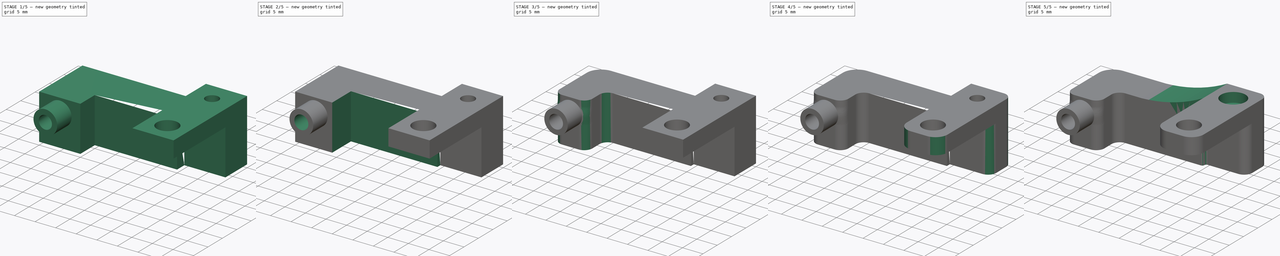
[diagram: build sequence overview — one tinted view per stage of 5, left to right]
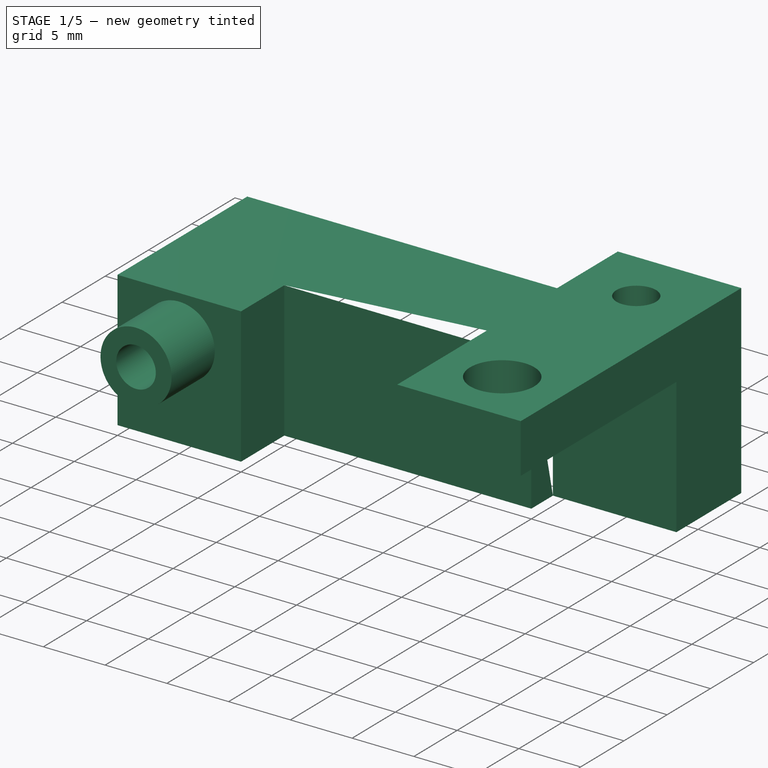
[diagram: stage 1 of 5 — iso view after this stage's code; geometry added in this stage tinted green]
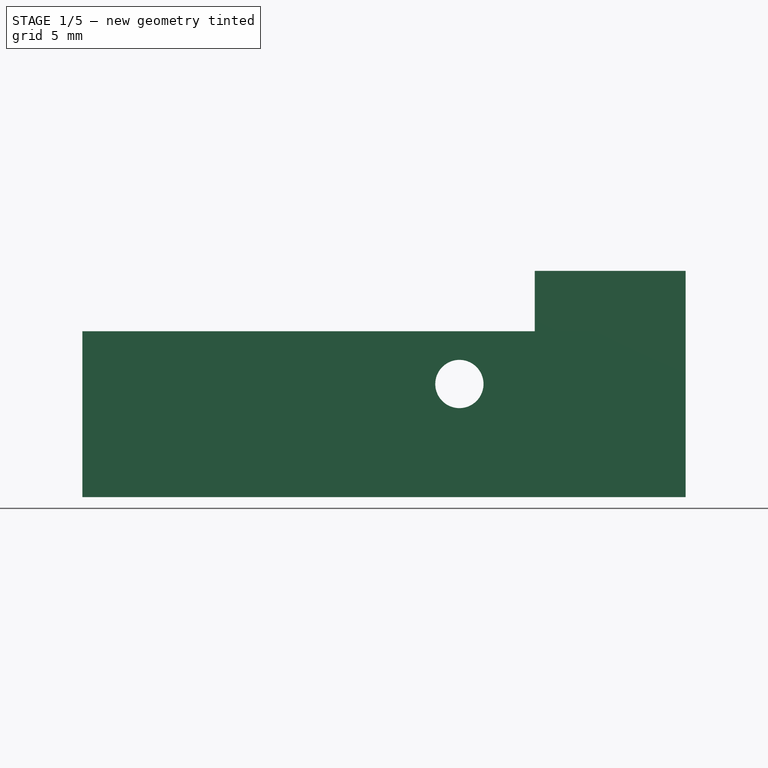
[diagram: stage 1 of 5 — front view after this stage's code; geometry added in this stage tinted green]
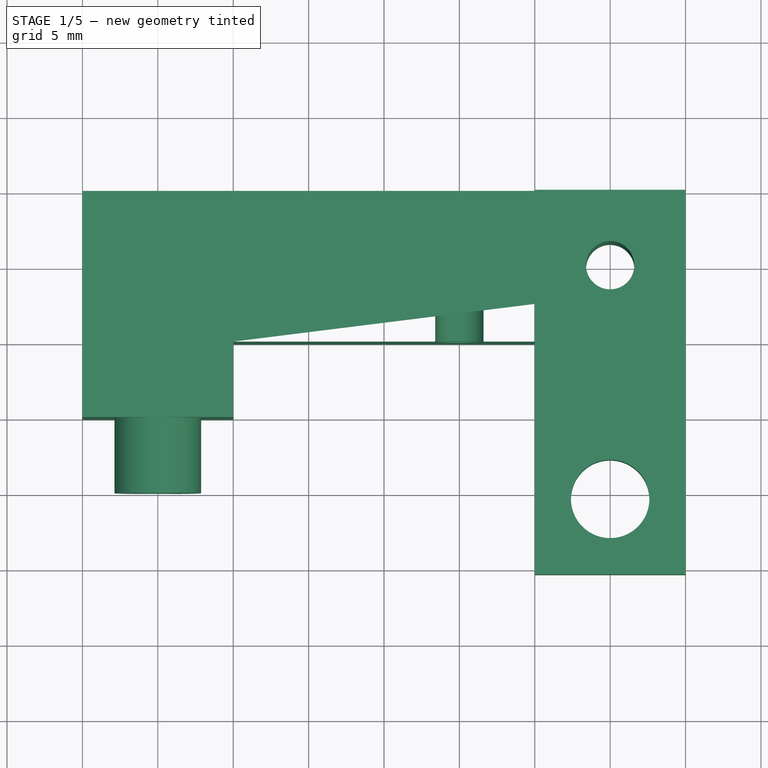
[diagram: stage 1 of 5 — top view after this stage's code; geometry added in this stage tinted green]
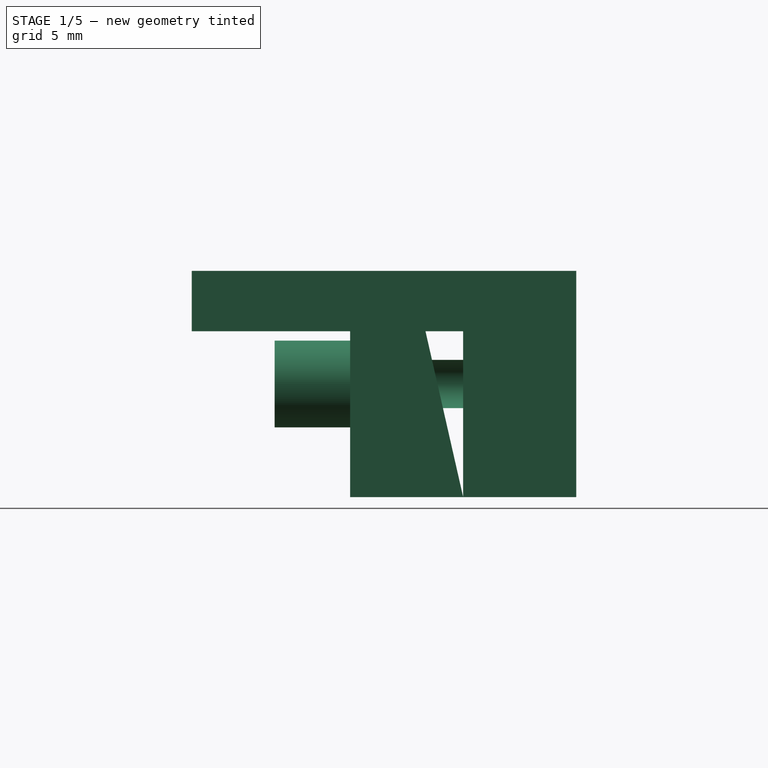
[diagram: stage 1 of 5 — right view after this stage's code; geometry added in this stage tinted green]
FCSTD DOCUMENT  (FreeCAD 1.0R39109 (Git))
Label: bearing_holder
License: All rights reserved
LicenseURL: https://en.wikipedia.org/wiki/All_rights_reserved
objects: Sketcher::SketchObject×7, PartDesign::Fillet×7, PartDesign::Pad×4, PartDesign::Pocket×4, PartDesign::Hole×3, PartDesign::Body×1
note: 69 computed .brp shape members not serialized (recipe doc carries the construction recipe); baked Part::Feature solids carry a one-line shape summary decoded from their .brp

FEATURE [Sketcher::SketchObject] Sketch
  ArcFitTolerance = 1e-06
  AttachmentSupport = -> [XY_Plane]
  FullyConstrained = true
  MakeInternals = false
  MapMode = 5
  sketch-geometry (34):
    g0: LineSegment [constr] StartX=0 StartY=0 StartZ=0 EndX=40 EndY=0 EndZ=0
    g1: LineSegment [constr] StartX=40 StartY=0 StartZ=0 EndX=40 EndY=10 EndZ=0
    g2: LineSegment StartX=40 StartY=10 StartZ=0 EndX=0 EndY=10 EndZ=0
    g3: LineSegment StartX=0 StartY=10 StartZ=0 EndX=0 EndY=0 EndZ=0
    g4: LineSegment [constr] StartX=40 StartY=0 StartZ=0 EndX=30 EndY=0 EndZ=0
    g5: LineSegment [constr] StartX=30 StartY=0 StartZ=0 EndX=30 EndY=-15.5 EndZ=0
    g6: LineSegment [constr] StartX=30 StartY=-15.5 StartZ=0 EndX=40 EndY=-15.5 EndZ=0
    g7: LineSegment [constr] StartX=40 StartY=-15.5 StartZ=0 EndX=40 EndY=0 EndZ=0
    g8: LineSegment StartX=40 StartY=10 StartZ=0 EndX=30 EndY=10 EndZ=0
    g9: LineSegment [constr] StartX=30 StartY=10 StartZ=0 EndX=40 EndY=0 EndZ=0
    g10: Circle CenterX=35 CenterY=5 CenterZ=0 NormalX=0 NormalY=0 NormalZ=1 AngleXU=0 Radius=1.6
    g11: LineSegment [constr] StartX=35 StartY=5 StartZ=0 EndX=35 EndY=-10.5 EndZ=0
    g12: Circle [constr] CenterX=35 CenterY=-10.5 CenterZ=0 NormalX=0 NormalY=0 NormalZ=1 AngleXU=0 Radius=2.6
    g13: LineSegment [constr] StartX=0 StartY=10 StartZ=0 EndX=0 EndY=-5 EndZ=0
    g14: LineSegment [constr] StartX=0 StartY=-5 StartZ=0 EndX=10 EndY=-5 EndZ=0
    g15: LineSegment [constr] StartX=10 StartY=-5 StartZ=0 EndX=10 EndY=10 EndZ=0
    g16: LineSegment [constr] StartX=10 StartY=10 StartZ=0 EndX=0 EndY=10 EndZ=0
    g17: LineSegment StartX=0 StartY=0 StartZ=0 EndX=0 EndY=-5 EndZ=0
    g18: LineSegment StartX=10 StartY=-5 StartZ=0 EndX=0 EndY=-5 EndZ=0
    g19: LineSegment StartX=30 StartY=0 StartZ=0 EndX=10 EndY=0 EndZ=0
    g20: LineSegment StartX=10 StartY=0 StartZ=0 EndX=10 EndY=-5 EndZ=0
    g21: LineSegment [constr] StartX=35 StartY=5 StartZ=0 EndX=35 EndY=2.5 EndZ=0
    g22: LineSegment StartX=35 StartY=2.5 StartZ=0 EndX=30 EndY=2.5 EndZ=0
    g23: LineSegment StartX=30 StartY=2.5 StartZ=0 EndX=30 EndY=0 EndZ=0
    g24: LineSegment StartX=35 StartY=2.5 StartZ=0 EndX=40 EndY=2.5 EndZ=0
    g25: LineSegment StartX=40 StartY=2.5 StartZ=0 EndX=40 EndY=10 EndZ=0
    g26: LineSegment StartX=0 StartY=10 StartZ=0 EndX=40 EndY=10 EndZ=0
    g27: LineSegment StartX=40 StartY=2.5 StartZ=0 EndX=40 EndY=10 EndZ=0
    g28: LineSegment StartX=40 StartY=2.5 StartZ=0 EndX=30 EndY=2.5 EndZ=0
    g29: LineSegment StartX=30 StartY=2.5 StartZ=0 EndX=30 EndY=0 EndZ=0
    g30: LineSegment StartX=30 StartY=0 StartZ=0 EndX=10 EndY=0 EndZ=0
    g31: LineSegment StartX=10 StartY=0 StartZ=0 EndX=10 EndY=-5 EndZ=0
    g32: LineSegment StartX=10 StartY=-5 StartZ=0 EndX=0 EndY=-5 EndZ=0
    g33: LineSegment StartX=0 StartY=-5 StartZ=0 EndX=0 EndY=10 EndZ=0
  constraints (83):
    c: Coincident(g0,g1)
    c: Coincident(g1,g2)
    c: Coincident(g2,g3)
    c: Coincident(g3,g0)
    c: Horizontal(g0)
    c: Horizontal(g2)
    c: Vertical(g1)
    c: Vertical(g3)
    c: Distance(g1,g3) = 40
    c: Distance(g0,g2) = 10
    c: Coincident(g0,g-1)
    c: Coincident(g4,g5)
    c: Coincident(g5,g6)
    c: Coincident(g6,g7)
    c: Coincident(g7,g4)
    c: Horizontal(g4)
    c: Horizontal(g6)
    c: Vertical(g5)
    c: Vertical(g7)
    c: Distance(g5,g7) = 10
    c: Distance(g4,g6) = 15.5
    c: Coincident(g4,g0)
    c: Distance(g8) = 10
    c: Coincident(g8,g1)
    c: PointOnObject(g8,g2)
    c: Coincident(g9,g8)
    c: Coincident(g9,g0)
    c: Diameter(g10) = 3.2
    c: Symmetric(g9,g9,g10)
    c: Distance(g11) = 15.5
    c: Coincident(g11,g10)
    c: Vertical(g11)
    c: Diameter(g12) = 5.2
    c: Coincident(g12,g11)
    c: Coincident(g13,g14)
    c: Coincident(g14,g15)
    c: Coincident(g15,g16)
    c: Coincident(g16,g13)
    c: Vertical(g13)
    c: Vertical(g15)
    c: Horizontal(g14)
    c: Horizontal(g16)
    c: Distance(g13,g15) = 10
    c: Distance(g14,g16) = 15
    c: Coincident(g13,g2)
    c: Coincident(g17,g0)
    c: Coincident(g17,g13)
    c: Coincident(g18,g14)
    c: Coincident(g18,g13)
    c: Distance(g19) = 20
    c: Coincident(g19,g4)
    c: PointOnObject(g19,g0)
    c: Coincident(g20,g19)
    c: Coincident(g20,g14)
    c: Distance(g21) = 2.5
    c: Coincident(g21,g10)
    c: PointOnObject(g21,g11)
    c: Distance(g22) = 5
    c: Coincident(g22,g21)
    c: Horizontal(g22)
    c: Coincident(g23,g22)
    c: Coincident(g23,g4)
    c: Coincident(g24,g21)
    c: PointOnObject(g24,g1)
    c: Horizontal(g24)
    c: Coincident(g25,g24)
    c: Coincident(g25,g1)
    c: Coincident(g26,g2)
    c: Coincident(g26,g1)
    c: Coincident(g27,g24)
    c: Coincident(g27,g1)
    c: Coincident(g28,g24)
    c: Coincident(g28,g22)
    c: Coincident(g29,g22)
    c: Coincident(g29,g4)
    c: Coincident(g30,g4)
    c: Coincident(g30,g19)
    c: Coincident(g31,g19)
    c: Coincident(g31,g14)
    c: Coincident(g32,g14)
    c: Coincident(g32,g13)
    c: Coincident(g33,g13)
    c: Coincident(g33,g2)
FEATURE [Sketcher::SketchObject] Sketch001
  ArcFitTolerance = 1e-06
  AttachmentSupport = -> [XY_Plane]
  FullyConstrained = true
  MakeInternals = false
  MapMode = 5
  sketch-geometry (17):
    g0: LineSegment [constr] StartX=0 StartY=0 StartZ=0 EndX=40 EndY=0 EndZ=0
    g1: LineSegment [constr] StartX=40 StartY=0 StartZ=0 EndX=40 EndY=10 EndZ=0
    g2: LineSegment StartX=40 StartY=10 StartZ=0 EndX=0 EndY=10 EndZ=0
    g3: LineSegment StartX=0 StartY=10 StartZ=0 EndX=0 EndY=0 EndZ=0
    g4: LineSegment StartX=0 StartY=0 StartZ=0 EndX=0 EndY=-5 EndZ=0
    g5: LineSegment StartX=0 StartY=-5 StartZ=0 EndX=10 EndY=-5 EndZ=0
    g6: LineSegment StartX=10 StartY=-5 StartZ=0 EndX=10 EndY=0 EndZ=0
    g7: LineSegment [constr] StartX=10 StartY=0 StartZ=0 EndX=0 EndY=0 EndZ=0
    g8: LineSegment [constr] StartX=40 StartY=10 StartZ=0 EndX=35 EndY=10 EndZ=0
    g9: LineSegment [constr] StartX=35 StartY=10 StartZ=0 EndX=35 EndY=5 EndZ=0
    g10: LineSegment [constr] StartX=35 StartY=5 StartZ=0 EndX=40 EndY=5 EndZ=0
    g11: LineSegment [constr] StartX=40 StartY=5 StartZ=0 EndX=40 EndY=10 EndZ=0
    g12: Circle CenterX=35 CenterY=5 CenterZ=0 NormalX=0 NormalY=0 NormalZ=1 AngleXU=0 Radius=1.6
    g13: LineSegment StartX=10 StartY=0 StartZ=0 EndX=30 EndY=0 EndZ=0
    g14: LineSegment StartX=30 StartY=0 StartZ=0 EndX=30 EndY=2.5 EndZ=0
    g15: LineSegment StartX=30 StartY=2.5 StartZ=0 EndX=40 EndY=2.5 EndZ=0
    g16: LineSegment StartX=40 StartY=10 StartZ=0 EndX=40 EndY=2.5 EndZ=0
  constraints (46):
    c: Coincident(g0,g1)
    c: Coincident(g1,g2)
    c: Coincident(g2,g3)
    c: Coincident(g3,g0)
    c: Horizontal(g0)
    c: Horizontal(g2)
    c: Vertical(g1)
    c: Vertical(g3)
    c: Distance(g1,g3) = 40
    c: Distance(g0,g2) = 10
    c: Coincident(g0,g-1)
    c: Coincident(g4,g5)
    c: Coincident(g5,g6)
    c: Coincident(g6,g7)
    c: Coincident(g7,g4)
    c: Vertical(g4)
    c: Vertical(g6)
    c: Horizontal(g5)
    c: Horizontal(g7)
    c: Distance(g4,g6) = 10
    c: Distance(g5,g7) = 5
    c: Coincident(g4,g0)
    c: Coincident(g8,g9)
    c: Coincident(g9,g10)
    c: Coincident(g10,g11)
    c: Coincident(g11,g8)
    c: Horizontal(g8)
    c: Horizontal(g10)
    c: Vertical(g9)
    c: Vertical(g11)
    c: Distance(g9,g11) = 5
    c: Distance(g8,g10) = 5
    c: Coincident(g8,g1)
    c: Diameter(g12) = 3.2
    c: Coincident(g12,g9)
    c: Distance(g13) = 20
    c: Coincident(g13,g6)
    c: PointOnObject(g13,g0)
    c: Distance(g14) = 2.5
    c: Coincident(g14,g13)
    c: Vertical(g14)
    c: Coincident(g15,g14)
    c: PointOnObject(g15,g1)
    c: Horizontal(g15)
    c: Coincident(g16,g1)
    c: Coincident(g16,g15)
FEATURE [PartDesign::Pad] Pad
  Direction = (0,0,1)
  Length = 11
  Length2 = 10
  Profile = -> Sketch001
  ReferenceAxis = -> Sketch001 [N_Axis]
  Refine = true
  Suppressed = false
  Type = 0
FEATURE [Sketcher::SketchObject] Sketch002
  ArcFitTolerance = 1e-06
  AttachmentSupport = -> [Pad]
  FullyConstrained = true
  MakeInternals = false
  MapMode = 5
  Placement = pos=(0,0,11) rot=(0,0,1;0rad)
  sketch-geometry (15):
    g0: LineSegment [constr] StartX=0 StartY=0 StartZ=0 EndX=40 EndY=0 EndZ=0
    g1: LineSegment [constr] StartX=40 StartY=0 StartZ=0 EndX=40 EndY=10 EndZ=0
    g2: LineSegment [constr] StartX=40 StartY=10 StartZ=0 EndX=0 EndY=10 EndZ=0
    g3: LineSegment [constr] StartX=0 StartY=10 StartZ=0 EndX=0 EndY=0 EndZ=0
    g4: LineSegment StartX=40 StartY=10 StartZ=0 EndX=30 EndY=10 EndZ=0
    g5: LineSegment StartX=30 StartY=10 StartZ=0 EndX=30 EndY=-15.5 EndZ=0
    g6: LineSegment StartX=30 StartY=-15.5 StartZ=0 EndX=40 EndY=-15.5 EndZ=0
    g7: LineSegment StartX=40 StartY=-15.5 StartZ=0 EndX=40 EndY=10 EndZ=0
    g8: LineSegment [constr] StartX=40 StartY=10 StartZ=0 EndX=35 EndY=10 EndZ=0
    g9: LineSegment [constr] StartX=35 StartY=10 StartZ=0 EndX=35 EndY=5 EndZ=0
    g10: LineSegment [constr] StartX=35 StartY=5 StartZ=0 EndX=40 EndY=5 EndZ=0
    g11: LineSegment [constr] StartX=40 StartY=5 StartZ=0 EndX=40 EndY=10 EndZ=0
    g12: LineSegment [constr] StartX=35 StartY=5 StartZ=0 EndX=35 EndY=-10.5 EndZ=0
    g13: Circle CenterX=35 CenterY=-10.5 CenterZ=0 NormalX=0 NormalY=0 NormalZ=1 AngleXU=0 Radius=2.6
    g14: Circle CenterX=35 CenterY=5 CenterZ=0 NormalX=0 NormalY=0 NormalZ=1 AngleXU=0 Radius=1.6
  constraints (40):
    c: Coincident(g0,g1)
    c: Coincident(g1,g2)
    c: Coincident(g2,g3)
    c: Coincident(g3,g0)
    c: Horizontal(g0)
    c: Horizontal(g2)
    c: Vertical(g1)
    c: Vertical(g3)
    c: Distance(g1,g3) = 40
    c: Distance(g0,g2) = 10
    c: Coincident(g0,g-1)
    c: Coincident(g4,g5)
    c: Coincident(g5,g6)
    c: Coincident(g6,g7)
    c: Coincident(g7,g4)
    c: Horizontal(g4)
    c: Horizontal(g6)
    c: Vertical(g5)
    c: Vertical(g7)
    c: Distance(g5,g7) = 10
    c: Distance(g4,g6) = 25.5
    c: Coincident(g4,g1)
    c: Coincident(g8,g9)
    c: Coincident(g9,g10)
    c: Coincident(g10,g11)
    c: Coincident(g11,g8)
    c: Horizontal(g8)
    c: Horizontal(g10)
    c: Vertical(g9)
    c: Vertical(g11)
    c: Distance(g9,g11) = 5
    c: Distance(g8,g10) = 5
    c: Coincident(g8,g1)
    c: Distance(g12) = 15.5
    c: Coincident(g12,g9)
    c: Vertical(g12)
    c: Diameter(g13) = 5.2
    c: Coincident(g13,g12)
    c: Diameter(g14) = 3.2
    c: Coincident(g14,g9)
FEATURE [PartDesign::Pad] Pad001
  BaseFeature = -> Pad
  Direction = (0,0,1)
  Length = 4
  Length2 = 10
  Profile = -> Sketch002
  ReferenceAxis = -> Sketch002 [N_Axis]
  Refine = true
  Suppressed = false
  Type = 0
FEATURE [Sketcher::SketchObject] Sketch003
  ArcFitTolerance = 1e-06
  AttachmentSupport = -> [Pad001]
  FullyConstrained = true
  MakeInternals = false
  MapMode = 5
  Placement = pos=(0,-5,0) rot=(1,0,0;1.5708rad)
  sketch-geometry (7):
    g0: LineSegment [constr] StartX=0 StartY=0 StartZ=0 EndX=10 EndY=0 EndZ=0
    g1: LineSegment [constr] StartX=10 StartY=0 StartZ=0 EndX=10 EndY=11 EndZ=0
    g2: LineSegment [constr] StartX=10 StartY=11 StartZ=0 EndX=0 EndY=11 EndZ=0
    g3: LineSegment [constr] StartX=0 StartY=11 StartZ=0 EndX=0 EndY=0 EndZ=0
    g4: LineSegment [constr] StartX=5 StartY=0 StartZ=0 EndX=5 EndY=7.5 EndZ=0
    g5: Circle CenterX=5 CenterY=7.5 CenterZ=0 NormalX=0 NormalY=0 NormalZ=1 AngleXU=0 Radius=2.875
    g6: Circle CenterX=5 CenterY=7.5 CenterZ=0 NormalX=0 NormalY=0 NormalZ=1 AngleXU=0 Radius=1.6
  constraints (18):
    c: Coincident(g0,g1)
    c: Coincident(g1,g2)
    c: Coincident(g2,g3)
    c: Coincident(g3,g0)
    c: Horizontal(g0)
    c: Horizontal(g2)
    c: Vertical(g1)
    c: Vertical(g3)
    c: Distance(g1,g3) = 10
    c: Distance(g0,g2) = 11
    c: Coincident(g0,g-1)
    c: Distance(g4) = 7.5
    c: Symmetric(g0,g0,g4)
    c: Vertical(g4)
    c: Diameter(g5) = 5.75
    c: Coincident(g5,g4)
    c: Diameter(g6) = 3.2
    c: Coincident(g6,g4)
FEATURE [PartDesign::Pad] Pad002
  BaseFeature = -> Pad001
  Direction = (0,-1,2e-16)
  Length = 5
  Length2 = 10
  Profile = -> Sketch003
  ReferenceAxis = -> Sketch003 [N_Axis]
  Refine = true
  Suppressed = false
  Type = 0
FEATURE [Sketcher::SketchObject] Sketch004
  ArcFitTolerance = 1e-06
  AttachmentSupport = -> [Pad002]
  FullyConstrained = true
  MakeInternals = false
  MapMode = 5
  Placement = pos=(0,10,0) rot=(0,0.707107,0.707107;3.14159rad)
  sketch-geometry (20):
    g0: LineSegment [constr] StartX=0 StartY=0 StartZ=0 EndX=0 EndY=11 EndZ=0
    g1: LineSegment [constr] StartX=0 StartY=11 StartZ=0 EndX=-40 EndY=11 EndZ=0
    g2: LineSegment [constr] StartX=-40 StartY=11 StartZ=0 EndX=-40 EndY=0 EndZ=0
    g3: LineSegment [constr] StartX=-40 StartY=0 StartZ=0 EndX=0 EndY=0 EndZ=0
    g4: LineSegment [constr] StartX=-40 StartY=0 StartZ=0 EndX=-35 EndY=0 EndZ=0
    g5: LineSegment [constr] StartX=-35 StartY=0 StartZ=0 EndX=-35 EndY=11 EndZ=0
    g6: LineSegment [constr] StartX=-35 StartY=11 StartZ=0 EndX=-40 EndY=11 EndZ=0
    g7: LineSegment [constr] StartX=-40 StartY=11 StartZ=0 EndX=-40 EndY=0 EndZ=0
    g8: LineSegment [constr] StartX=-35 StartY=0 StartZ=0 EndX=-35 EndY=7.5 EndZ=0
    g9: LineSegment [constr] StartX=-35 StartY=7.5 StartZ=0 EndX=-25 EndY=7.5 EndZ=0
    g10: Circle CenterX=-25 CenterY=7.5 CenterZ=0 NormalX=0 NormalY=0 NormalZ=1 AngleXU=0 Radius=1.6
    g11: LineSegment [constr] StartX=0 StartY=11 StartZ=0 EndX=-10 EndY=11 EndZ=0
    g12: LineSegment [constr] StartX=-10 StartY=11 StartZ=0 EndX=-10 EndY=0 EndZ=0
    g13: LineSegment [constr] StartX=-10 StartY=0 StartZ=0 EndX=0 EndY=0 EndZ=0
    g14: LineSegment [constr] StartX=0 StartY=0 StartZ=0 EndX=0 EndY=11 EndZ=0
    g15: LineSegment [constr] StartX=0 StartY=0 StartZ=0 EndX=0 EndY=7.5 EndZ=0
    g16: LineSegment [constr] StartX=0 StartY=7.5 StartZ=0 EndX=-5 EndY=7.5 EndZ=0
    g17: LineSegment [constr] StartX=-5 StartY=7.5 StartZ=0 EndX=-5 EndY=0 EndZ=0
    g18: LineSegment [constr] StartX=-5 StartY=0 StartZ=0 EndX=0 EndY=0 EndZ=0
    g19: Circle [constr] CenterX=-5 CenterY=7.5 CenterZ=0 NormalX=0 NormalY=0 NormalZ=1 AngleXU=0 Radius=1.25
  constraints (54):
    c: Coincident(g0,g1)
    c: Coincident(g1,g2)
    c: Coincident(g2,g3)
    c: Coincident(g3,g0)
    c: Vertical(g0)
    c: Vertical(g2)
    c: Horizontal(g1)
    c: Horizontal(g3)
    c: Distance(g0,g2) = 40
    c: Distance(g1,g3) = 11
    c: Coincident(g0,g-1)
    c: Coincident(g4,g5)
    c: Coincident(g5,g6)
    c: Coincident(g6,g7)
    c: Coincident(g7,g4)
    c: Horizontal(g4)
    c: Horizontal(g6)
    c: Vertical(g5)
    c: Vertical(g7)
    c: Distance(g5,g7) = 5
    c: Coincident(g4,g2)
    c: PointOnObject(g5,g1)
    c: Distance(g8) = 7.5
    c: Coincident(g8,g4)
    c: PointOnObject(g8,g5)
    c: Distance(g9) = 10
    c: Coincident(g9,g8)
    c: Horizontal(g9)
    c: Diameter(g10) = 3.2
    c: Coincident(g10,g9)
    c: Coincident(g11,g12)
    c: Coincident(g12,g13)
    c: Coincident(g13,g14)
    c: Coincident(g14,g11)
    c: Horizontal(g11)
    c: Horizontal(g13)
    c: Vertical(g12)
    c: Vertical(g14)
    c: Distance(g12,g14) = 10
    c: Coincident(g11,g0)
    c: PointOnObject(g12,g3)
    c: Coincident(g15,g16)
    c: Coincident(g16,g17)
    c: Coincident(g17,g18)
    c: Coincident(g18,g15)
    c: Vertical(g15)
    c: Vertical(g17)
    c: Horizontal(g16)
    c: Horizontal(g18)
    c: Distance(g15,g17) = 5
    c: Distance(g16,g18) = 7.5
    c: Coincident(g15,g0)
    c: Diameter(g19) = 2.5
    c: Coincident(g19,g16)
FEATURE [PartDesign::Pocket] Pocket
  BaseFeature = -> Pad002
  Direction = (0,-1,2e-16)
  Length = 10
  Length2 = 5
  Profile = -> Sketch004
  ReferenceAxis = -> Sketch004 [N_Axis]
  Refine = true
  Suppressed = false
  Type = 0
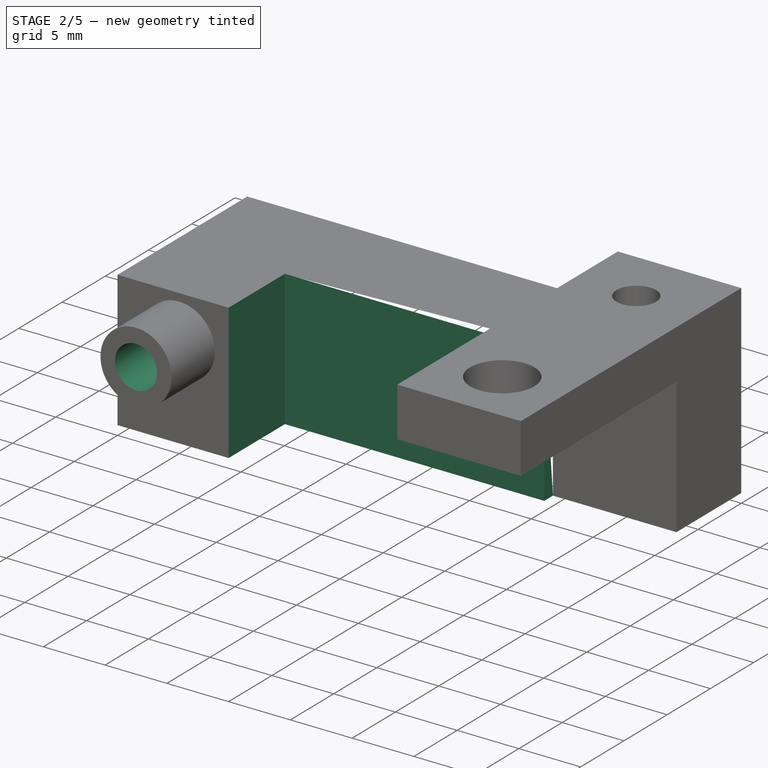
[diagram: stage 2 of 5 — iso view after this stage's code; geometry added in this stage tinted green]
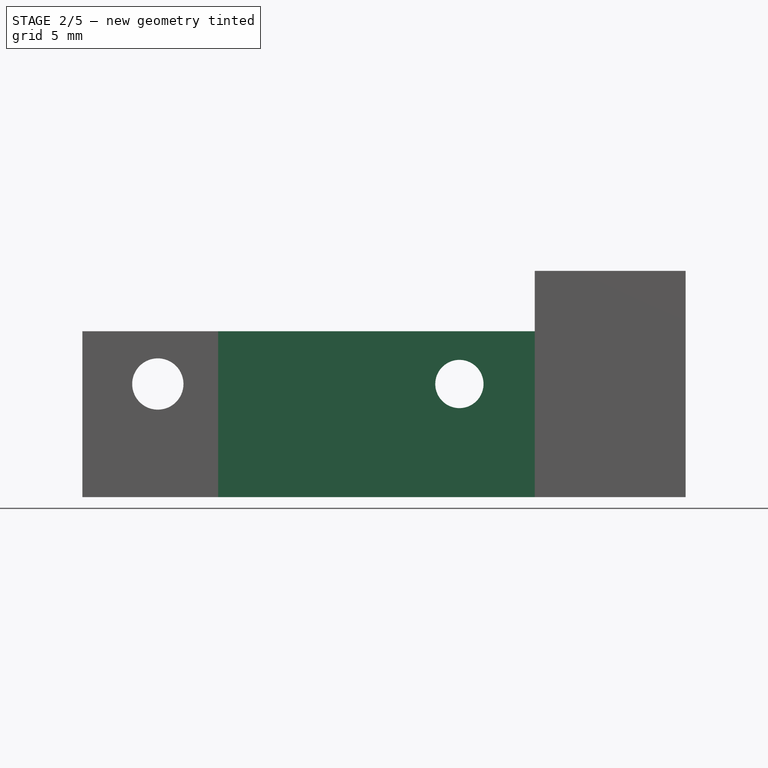
[diagram: stage 2 of 5 — front view after this stage's code; geometry added in this stage tinted green]
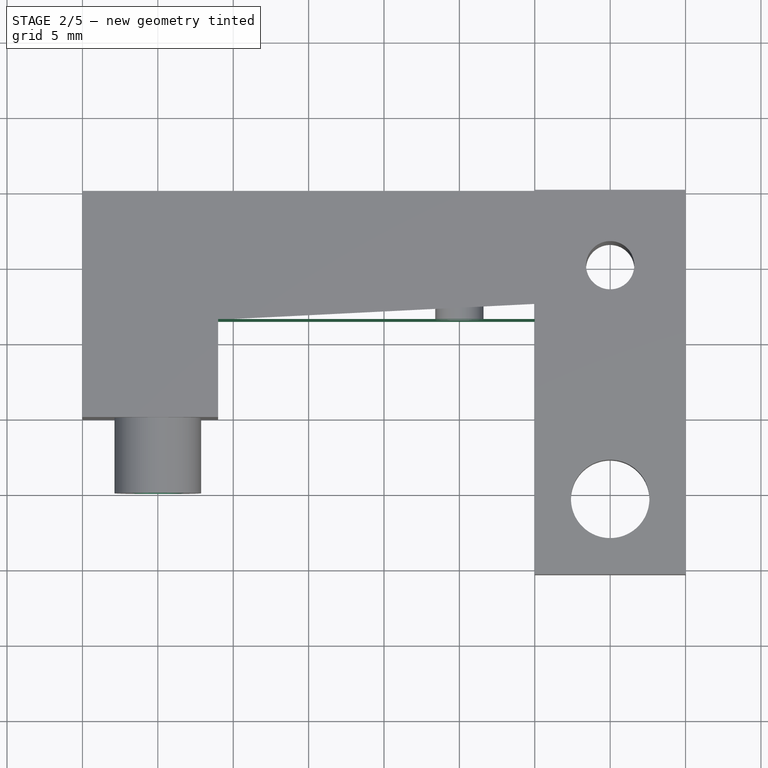
[diagram: stage 2 of 5 — top view after this stage's code; geometry added in this stage tinted green]
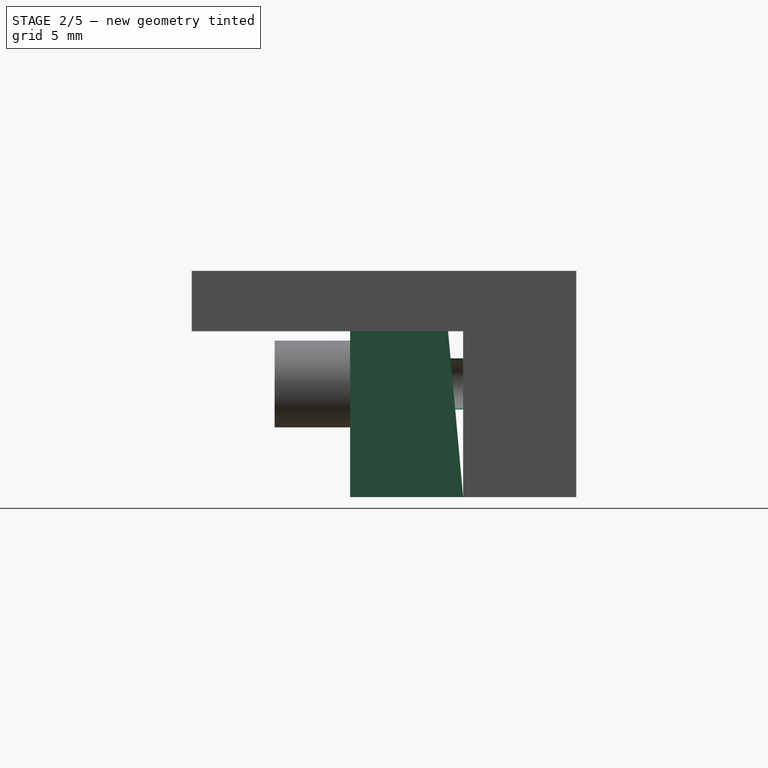
[diagram: stage 2 of 5 — right view after this stage's code; geometry added in this stage tinted green]
FEATURE [Sketcher::SketchObject] Sketch005
  ArcFitTolerance = 1e-06
  AttachmentSupport = -> [Pocket]
  FullyConstrained = true
  MakeInternals = false
  MapMode = 5
  Placement = pos=(0,10,0) rot=(0,0.707107,0.707107;3.14159rad)
  sketch-geometry (20):
    g0: LineSegment [constr] StartX=0 StartY=0 StartZ=0 EndX=0 EndY=11 EndZ=0
    g1: LineSegment [constr] StartX=0 StartY=11 StartZ=0 EndX=-40 EndY=11 EndZ=0
    g2: LineSegment [constr] StartX=-40 StartY=11 StartZ=0 EndX=-40 EndY=0 EndZ=0
    g3: LineSegment [constr] StartX=-40 StartY=0 StartZ=0 EndX=0 EndY=0 EndZ=0
    g4: LineSegment [constr] StartX=-40 StartY=0 StartZ=0 EndX=-35 EndY=0 EndZ=0
    g5: LineSegment [constr] StartX=-35 StartY=0 StartZ=0 EndX=-35 EndY=11 EndZ=0
    g6: LineSegment [constr] StartX=-35 StartY=11 StartZ=0 EndX=-40 EndY=11 EndZ=0
    g7: LineSegment [constr] StartX=-40 StartY=11 StartZ=0 EndX=-40 EndY=0 EndZ=0
    g8: LineSegment [constr] StartX=-35 StartY=0 StartZ=0 EndX=-35 EndY=7.5 EndZ=0
    g9: LineSegment [constr] StartX=-35 StartY=7.5 StartZ=0 EndX=-26 EndY=7.5 EndZ=0
    g10: Circle [constr] CenterX=-26 CenterY=7.5 CenterZ=0 NormalX=0 NormalY=0 NormalZ=1 AngleXU=0 Radius=1.6
    g11: LineSegment [constr] StartX=0 StartY=11 StartZ=0 EndX=-10 EndY=11 EndZ=0
    g12: LineSegment [constr] StartX=-10 StartY=11 StartZ=0 EndX=-10 EndY=0 EndZ=0
    g13: LineSegment [constr] StartX=-10 StartY=0 StartZ=0 EndX=0 EndY=0 EndZ=0
    g14: LineSegment [constr] StartX=0 StartY=0 StartZ=0 EndX=0 EndY=11 EndZ=0
    g15: LineSegment [constr] StartX=0 StartY=0 StartZ=0 EndX=0 EndY=7.5 EndZ=0
    g16: LineSegment [constr] StartX=0 StartY=7.5 StartZ=0 EndX=-5 EndY=7.5 EndZ=0
    g17: LineSegment [constr] StartX=-5 StartY=7.5 StartZ=0 EndX=-5 EndY=0 EndZ=0
    g18: LineSegment [constr] StartX=-5 StartY=0 StartZ=0 EndX=0 EndY=0 EndZ=0
    g19: Circle CenterX=-5 CenterY=7.5 CenterZ=0 NormalX=0 NormalY=0 NormalZ=1 AngleXU=0 Radius=1.25
  constraints (54):
    c: Coincident(g0,g1)
    c: Coincident(g1,g2)
    c: Coincident(g2,g3)
    c: Coincident(g3,g0)
    c: Vertical(g0)
    c: Vertical(g2)
    c: Horizontal(g1)
    c: Horizontal(g3)
    c: Distance(g0,g2) = 40
    c: Distance(g1,g3) = 11
    c: Coincident(g0,g-1)
    c: Coincident(g4,g5)
    c: Coincident(g5,g6)
    c: Coincident(g6,g7)
    c: Coincident(g7,g4)
    c: Horizontal(g4)
    c: Horizontal(g6)
    c: Vertical(g5)
    c: Vertical(g7)
    c: Distance(g5,g7) = 5
    c: Coincident(g4,g2)
    c: PointOnObject(g5,g1)
    c: Distance(g8) = 7.5
    c: Coincident(g8,g4)
    c: PointOnObject(g8,g5)
    c: Distance(g9) = 9
    c: Coincident(g9,g8)
    c: Horizontal(g9)
    c: Diameter(g10) = 3.2
    c: Coincident(g10,g9)
    c: Coincident(g11,g12)
    c: Coincident(g12,g13)
    c: Coincident(g13,g14)
    c: Coincident(g14,g11)
    c: Horizontal(g11)
    c: Horizontal(g13)
    c: Vertical(g12)
    c: Vertical(g14)
    c: Distance(g12,g14) = 10
    c: Coincident(g11,g0)
    c: PointOnObject(g12,g3)
    c: Coincident(g15,g16)
    c: Coincident(g16,g17)
    c: Coincident(g17,g18)
    c: Coincident(g18,g15)
    c: Vertical(g15)
    c: Vertical(g17)
    c: Horizontal(g16)
    c: Horizontal(g18)
    c: Distance(g15,g17) = 5
    c: Distance(g16,g18) = 7.5
    c: Coincident(g15,g0)
    c: Diameter(g19) = 2.5
    c: Coincident(g19,g16)
FEATURE [PartDesign::Hole] Hole
  BaseFeature = -> Pocket
  CustomThreadClearance = 0
  Depth = 25
  DepthType = 0
  Diameter = 3.4
  DrillForDepth = false
  DrillPoint = 1
  DrillPointAngle = 118
  HoleCutCountersinkAngle = 90
  HoleCutCustomValues = false
  HoleCutDepth = 2.4
  HoleCutDiameter = 6
  HoleCutType = 4
  ModelThread = false
  Profile = -> Sketch005
  Refine = true
  Suppressed = false
  Tapered = false
  TaperedAngle = 90
  ThreadClass = 0
  ThreadDepth = 25
  ThreadDepthType = 0
  ThreadDirection = 0
  ThreadFit = 0
  ThreadSize = 9
  ThreadType = 1
  Threaded = false
  UseCustomThreadClearance = false
FEATURE [PartDesign::Pocket] Pocket001
  BaseFeature = -> Hole
  Direction = (-1,0,0)
  Length = 1
  Length2 = 5
  Profile = -> Hole [Face12]
  Refine = true
  Suppressed = false
  Type = 0
FEATURE [PartDesign::Pocket] Pocket002
  BaseFeature = -> Pocket001
  Direction = (0,1,0)
  Length = 1.5
  Length2 = 5
  Profile = -> Pocket001 [Face12,Face13]
  Refine = true
  Suppressed = false
  Type = 0
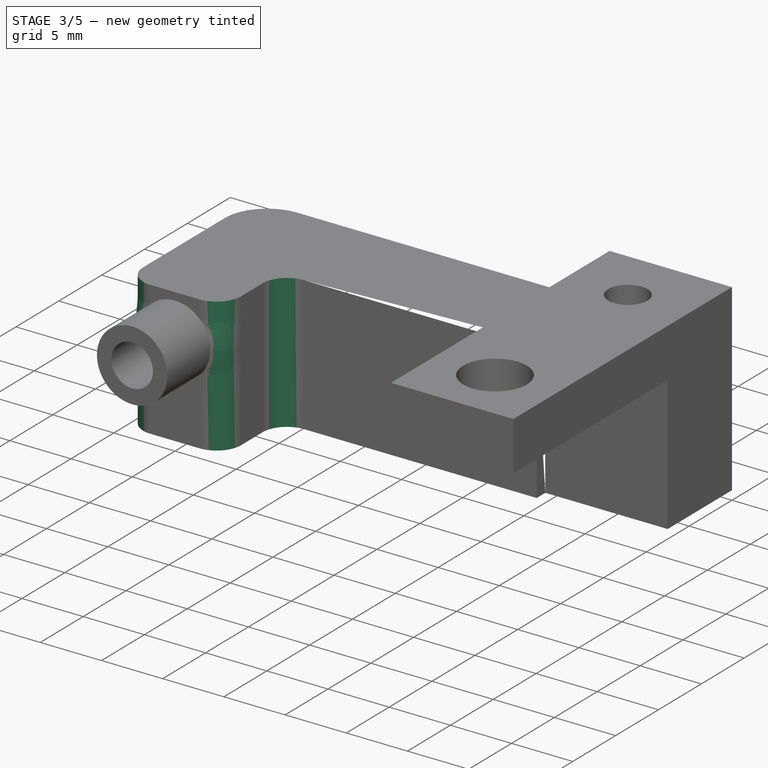
[diagram: stage 3 of 5 — iso view after this stage's code; geometry added in this stage tinted green]
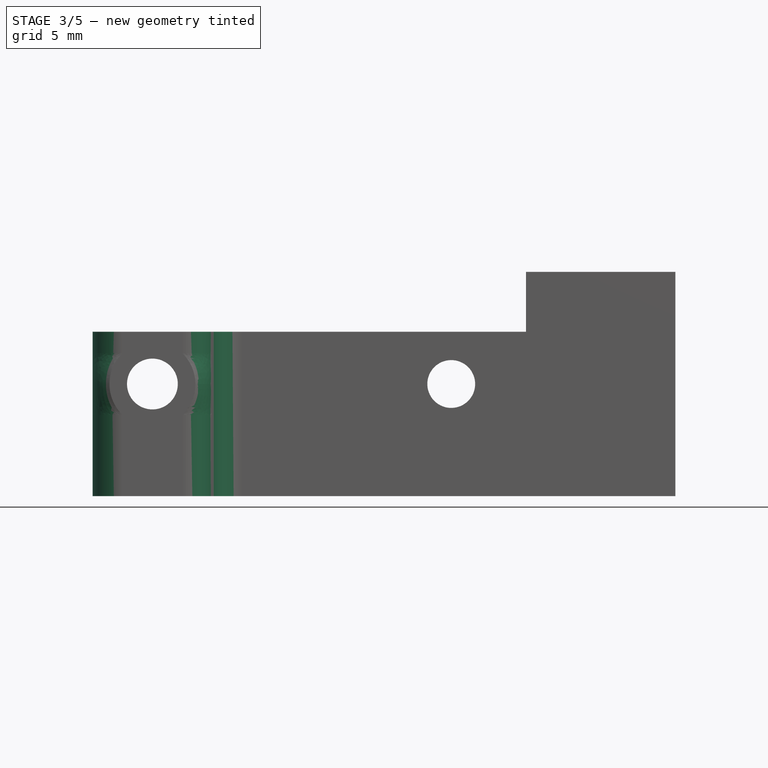
[diagram: stage 3 of 5 — front view after this stage's code; geometry added in this stage tinted green]
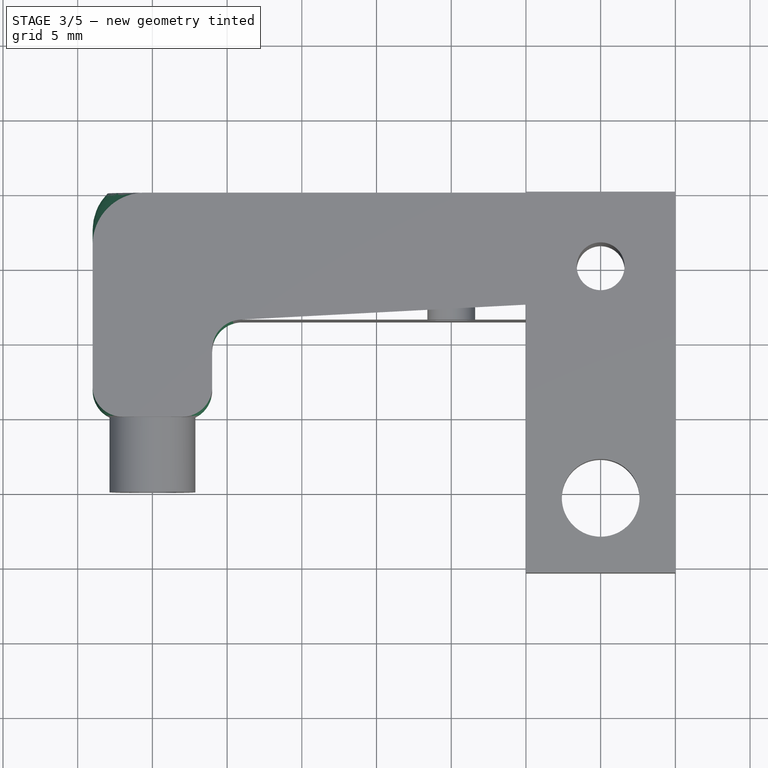
[diagram: stage 3 of 5 — top view after this stage's code; geometry added in this stage tinted green]
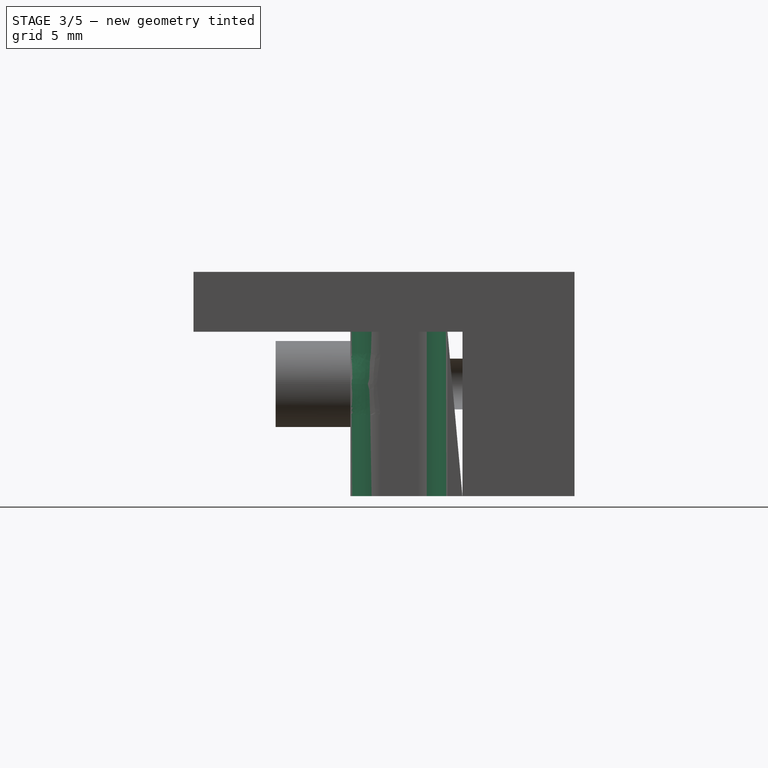
[diagram: stage 3 of 5 — right view after this stage's code; geometry added in this stage tinted green]
FEATURE [PartDesign::Pocket] Pocket003
  BaseFeature = -> Pocket002
  Direction = (1,0,0)
  Length = 1
  Length2 = 5
  Profile = -> Pocket002 [Face5]
  Refine = true
  Suppressed = false
  Type = 0
FEATURE [PartDesign::Fillet] Fillet
  Base = -> Pocket003 [Edge2]
  BaseFeature = -> Pocket003
  Radius = 3.49
  Refine = true
  SupportTransform = false
  Suppressed = false
  UseAllEdges = false
FEATURE [PartDesign::Fillet] Fillet001
  Base = -> Fillet [Edge44,Edge46]
  BaseFeature = -> Fillet
  Radius = 2
  Refine = true
  SupportTransform = false
  Suppressed = false
  UseAllEdges = false
FEATURE [PartDesign::Fillet] Fillet002
  Base = -> Fillet001 [Edge47]
  BaseFeature = -> Fillet001
  Radius = 2
  Refine = true
  SupportTransform = false
  Suppressed = false
  UseAllEdges = false
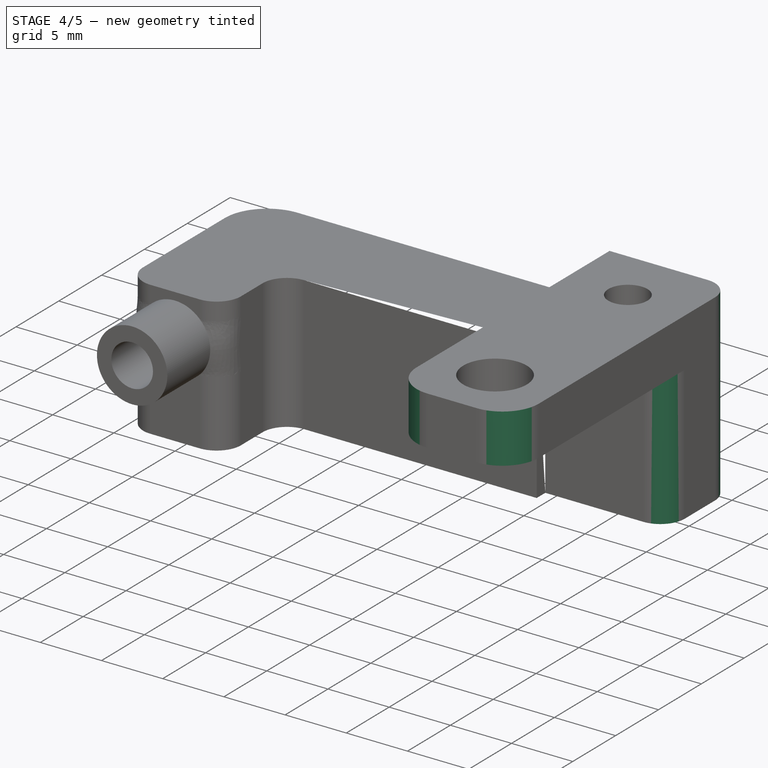
[diagram: stage 4 of 5 — iso view after this stage's code; geometry added in this stage tinted green]
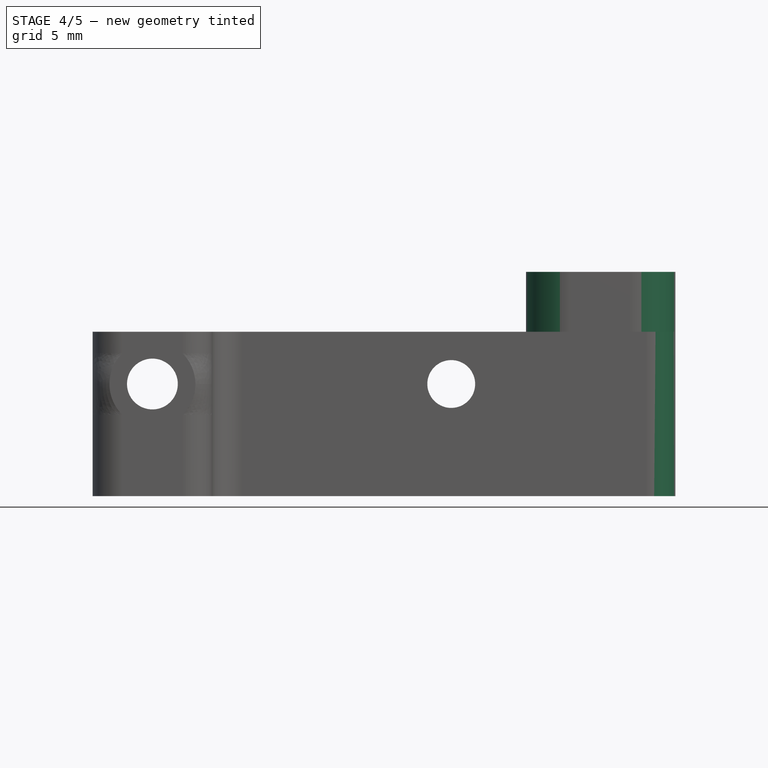
[diagram: stage 4 of 5 — front view after this stage's code; geometry added in this stage tinted green]
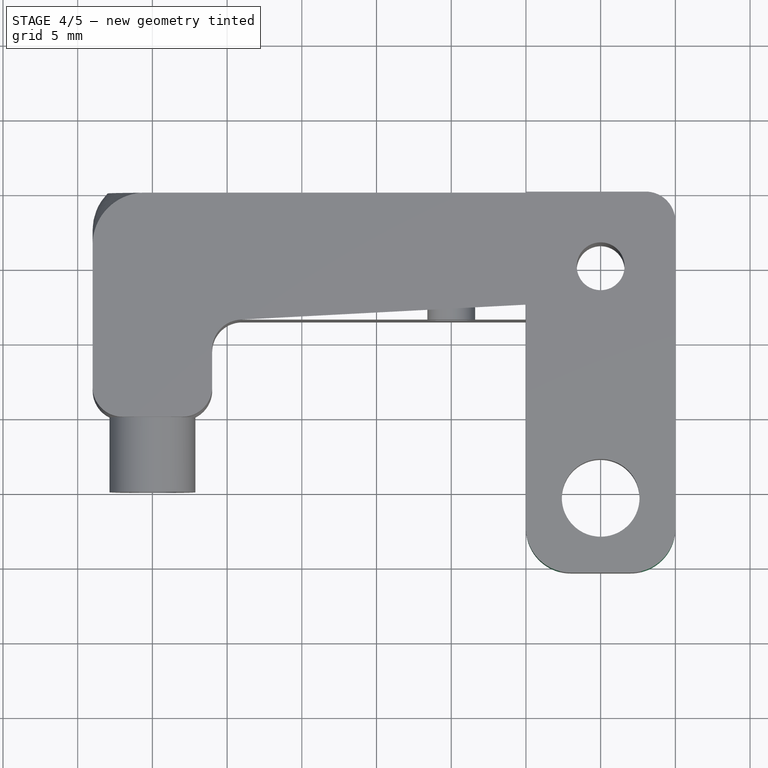
[diagram: stage 4 of 5 — top view after this stage's code; geometry added in this stage tinted green]
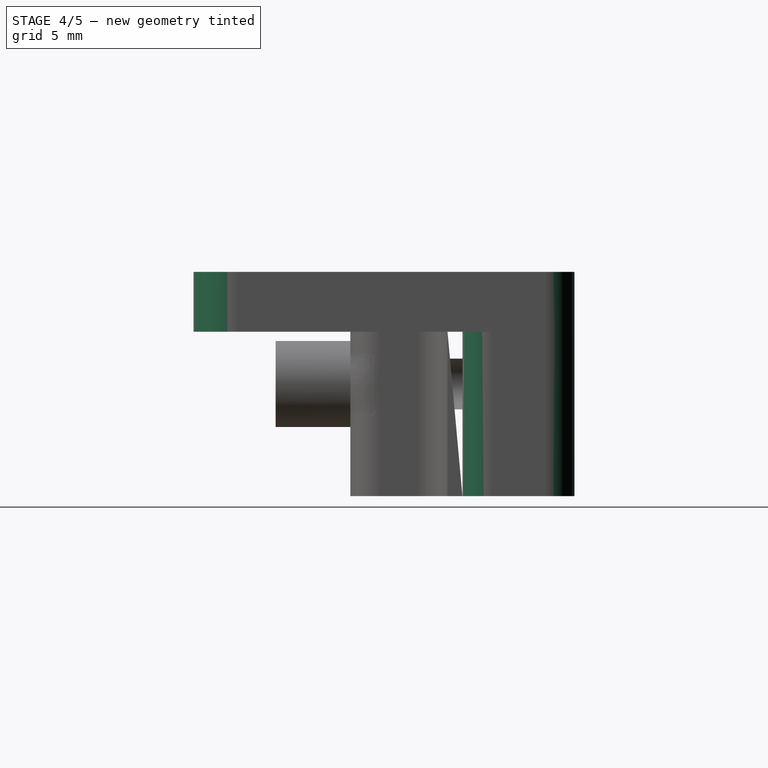
[diagram: stage 4 of 5 — right view after this stage's code; geometry added in this stage tinted green]
FEATURE [PartDesign::Fillet] Fillet003
  Base = -> Fillet002 [Edge33]
  BaseFeature = -> Fillet002
  Radius = 2
  Refine = true
  SupportTransform = false
  Suppressed = false
  UseAllEdges = false
FEATURE [PartDesign::Fillet] Fillet004
  Base = -> Fillet003 [Edge68,Edge70]
  BaseFeature = -> Fillet003
  Radius = 3
  Refine = true
  SupportTransform = false
  Suppressed = false
  UseAllEdges = false
FEATURE [PartDesign::Fillet] Fillet005
  Base = -> Fillet004 [Edge20,Edge15]
  BaseFeature = -> Fillet004
  Radius = 2
  Refine = true
  SupportTransform = false
  Suppressed = false
  UseAllEdges = false
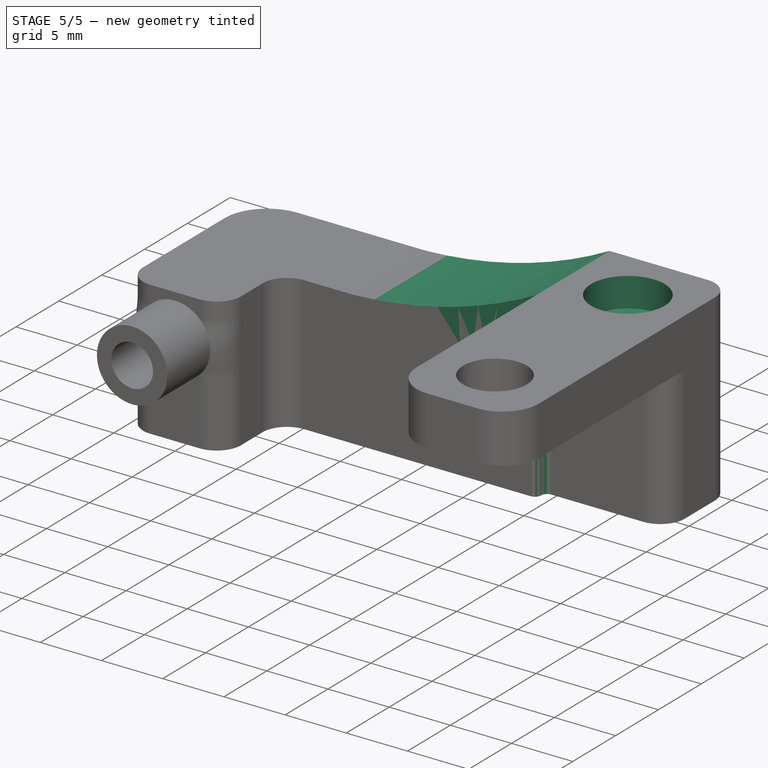
[diagram: stage 5 of 5 — iso view after this stage's code; geometry added in this stage tinted green]
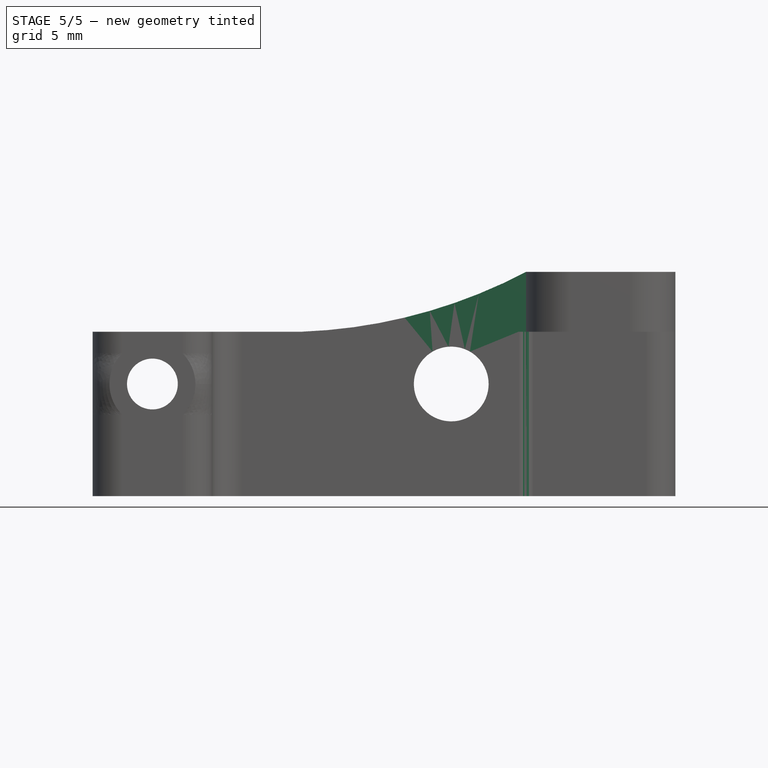
[diagram: stage 5 of 5 — front view after this stage's code; geometry added in this stage tinted green]
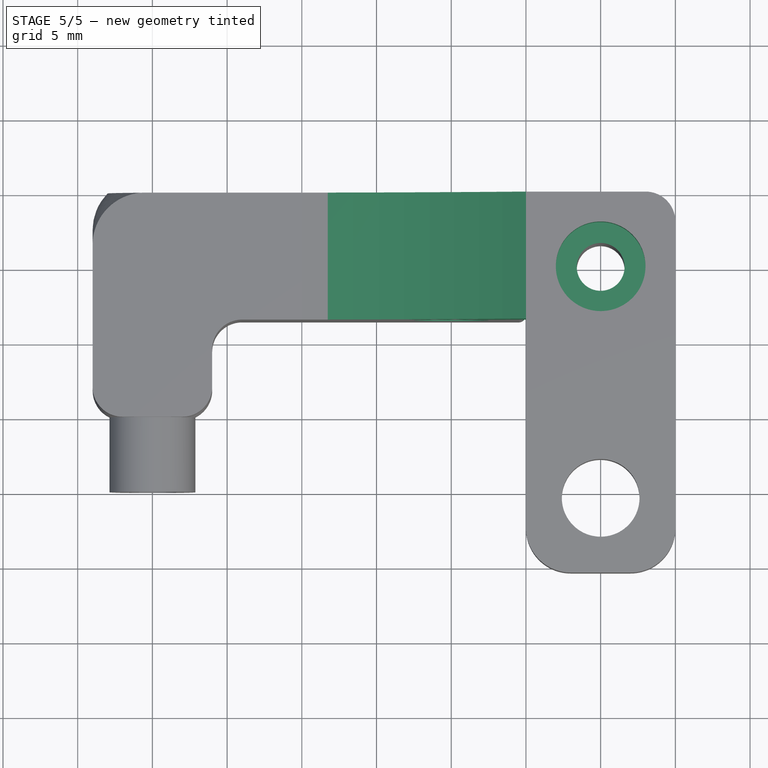
[diagram: stage 5 of 5 — top view after this stage's code; geometry added in this stage tinted green]
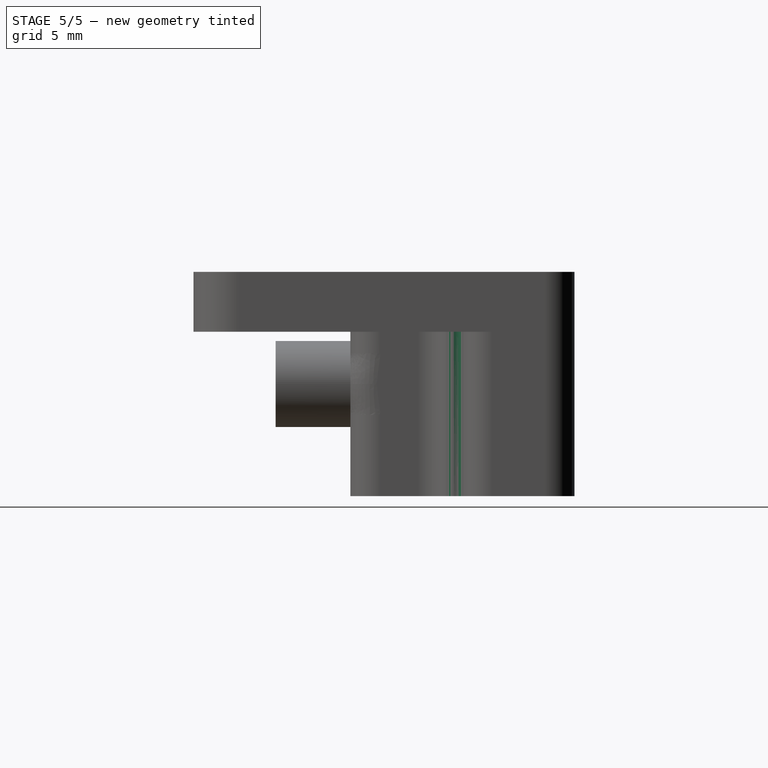
[diagram: stage 5 of 5 — right view after this stage's code; geometry added in this stage tinted green]
FEATURE [Sketcher::SketchObject] Sketch006
  ArcFitTolerance = 1e-06
  AttachmentSupport = -> [Fillet005]
  FullyConstrained = true
  MakeInternals = false
  MapMode = 5
  Placement = pos=(0,10,0) rot=(0,0.707107,0.707107;3.14159rad)
  sketch-geometry (13):
    g0: LineSegment [constr] StartX=0 StartY=0 StartZ=0 EndX=0 EndY=15 EndZ=0
    g1: LineSegment [constr] StartX=0 StartY=15 StartZ=0 EndX=-40 EndY=15 EndZ=0
    g2: LineSegment [constr] StartX=-40 StartY=15 StartZ=0 EndX=-40 EndY=0 EndZ=0
    g3: LineSegment [constr] StartX=-40 StartY=0 StartZ=0 EndX=0 EndY=0 EndZ=0
    g4: LineSegment [constr] StartX=-40 StartY=0 StartZ=0 EndX=-30 EndY=0 EndZ=0
    g5: LineSegment [constr] StartX=-30 StartY=0 StartZ=0 EndX=-30 EndY=11 EndZ=0
    g6: LineSegment [constr] StartX=-30 StartY=11 StartZ=0 EndX=-40 EndY=11 EndZ=0
    g7: LineSegment [constr] StartX=-40 StartY=11 StartZ=0 EndX=-40 EndY=0 EndZ=0
    g8: LineSegment [constr] StartX=-30 StartY=11 StartZ=0 EndX=-30 EndY=15 EndZ=0
    g9: LineSegment [constr] StartX=-30 StartY=11 StartZ=0 EndX=0 EndY=11 EndZ=0
    g10: LineSegment StartX=-30 StartY=15 StartZ=0 EndX=-30 EndY=11 EndZ=0
    g11: LineSegment StartX=-30 StartY=11 StartZ=0 EndX=-15 EndY=11 EndZ=0
    g12: ArcOfCircle CenterX=-13.7064 CenterY=45.9761 CenterZ=0 NormalX=0 NormalY=0 NormalZ=1 AngleXU=0 Radius=35 StartAngle=4.22815 EndAngle=4.67542
  constraints (35):
    c: Coincident(g0,g1)
    c: Coincident(g1,g2)
    c: Coincident(g2,g3)
    c: Coincident(g3,g0)
    c: Vertical(g0)
    c: Vertical(g2)
    c: Horizontal(g1)
    c: Horizontal(g3)
    c: Distance(g0,g2) = 40
    c: Distance(g1,g3) = 15
    c: Coincident(g0,g-1)
    c: Coincident(g4,g5)
    c: Coincident(g5,g6)
    c: Coincident(g6,g7)
    c: Coincident(g7,g4)
    c: Horizontal(g4)
    c: Horizontal(g6)
    c: Vertical(g5)
    c: Vertical(g7)
    c: Distance(g5,g7) = 10
    c: Distance(g4,g6) = 11
    c: Coincident(g4,g2)
    c: Coincident(g8,g5)
    c: PointOnObject(g8,g1)
    c: Vertical(g8)
    c: Coincident(g9,g5)
    c: PointOnObject(g9,g0)
    c: Horizontal(g9)
    c: Coincident(g10,g8)
    c: Coincident(g10,g5)
    c: Coincident(g11,g5)
    c: Symmetric(g9,g9,g11)
    c: Coincident(g12,g8)
    c: Coincident(g12,g11)
    c: Radius(g12) = 35
FEATURE [PartDesign::Pad] Pad003
  BaseFeature = -> Fillet005
  Direction = (0,1,-2e-16)
  Length = 8.5
  Length2 = 10
  Profile = -> Sketch006
  ReferenceAxis = -> Sketch006 [N_Axis]
  Refine = true
  Reversed = true
  Suppressed = false
  Type = 0
FEATURE [PartDesign::Fillet] Fillet006
  Base = -> Pad003 [Edge41,Edge43]
  BaseFeature = -> Pad003
  Radius = 0.49
  Refine = true
  SupportTransform = false
  Suppressed = false
  UseAllEdges = false
FEATURE [PartDesign::Hole] Hole001
  BaseFeature = -> Fillet006
  CustomThreadClearance = 0
  Depth = 25
  DepthType = 0
  Diameter = 5
  DrillForDepth = false
  DrillPoint = 1
  DrillPointAngle = 118
  HoleCutCountersinkAngle = 90
  HoleCutCustomValues = false
  HoleCutDepth = 0
  HoleCutDiameter = 9
  HoleCutType = 2
  ModelThread = false
  Profile = -> Fillet006 [Edge48]
  Refine = true
  Suppressed = false
  Tapered = false
  TaperedAngle = 90
  ThreadClass = 0
  ThreadDepth = 25
  ThreadDepthType = 0
  ThreadDirection = 0
  ThreadFit = 0
  ThreadSize = 12
  ThreadType = 1
  Threaded = false
  UseCustomThreadClearance = false
FEATURE [PartDesign::Hole] Hole002
  BaseFeature = -> Hole001
  CustomThreadClearance = 0
  Depth = 25
  DepthType = 0
  Diameter = 3.2
  DrillForDepth = false
  DrillPoint = 1
  DrillPointAngle = 118
  HoleCutCountersinkAngle = 90
  HoleCutCustomValues = false
  HoleCutDepth = 2.4
  HoleCutDiameter = 6
  HoleCutType = 4
  ModelThread = false
  Profile = -> Hole001 [Edge70]
  Refine = true
  Suppressed = false
  Tapered = false
  TaperedAngle = 90
  ThreadClass = 0
  ThreadDepth = 25
  ThreadDepthType = 0
  ThreadDirection = 0
  ThreadFit = 1
  ThreadSize = 9
  ThreadType = 1
  Threaded = false
  UseCustomThreadClearance = false
FEATURE [PartDesign::Body] Body
  AllowCompound = false
  Group = -> [Sketch,Sketch001,Pad,Sketch002,Pad001,Sketch003,Pad002,Sketch004,Pocket,Sketch005,Hole,Pocket001,Pocket002,Pocket003,Fillet,Fillet001,Fillet002,Fillet003,Fillet004,Fillet005,Sketch006,Pad003,Fillet006,Hole001,Hole002]
  Origin = -> Origin
  Tip = -> Hole002
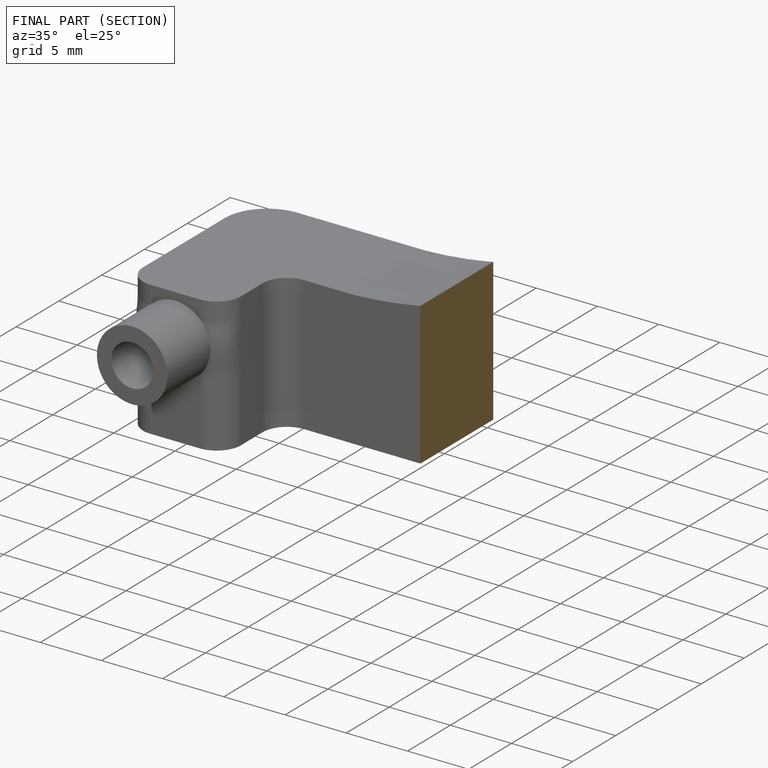
[diagram: finished part — half-section view (interior)]
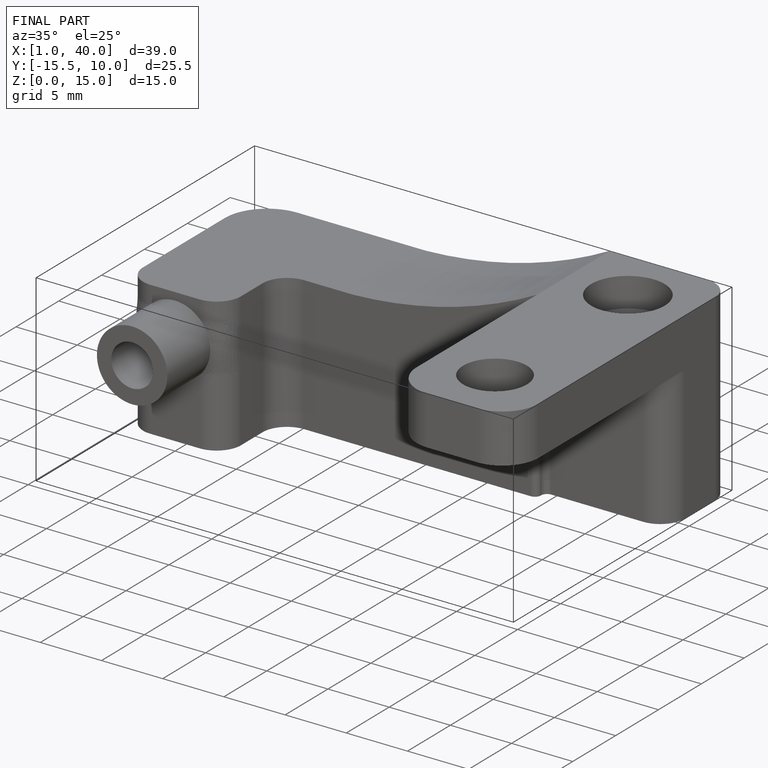
[diagram: finished part — iso view with bounding-box wireframe]
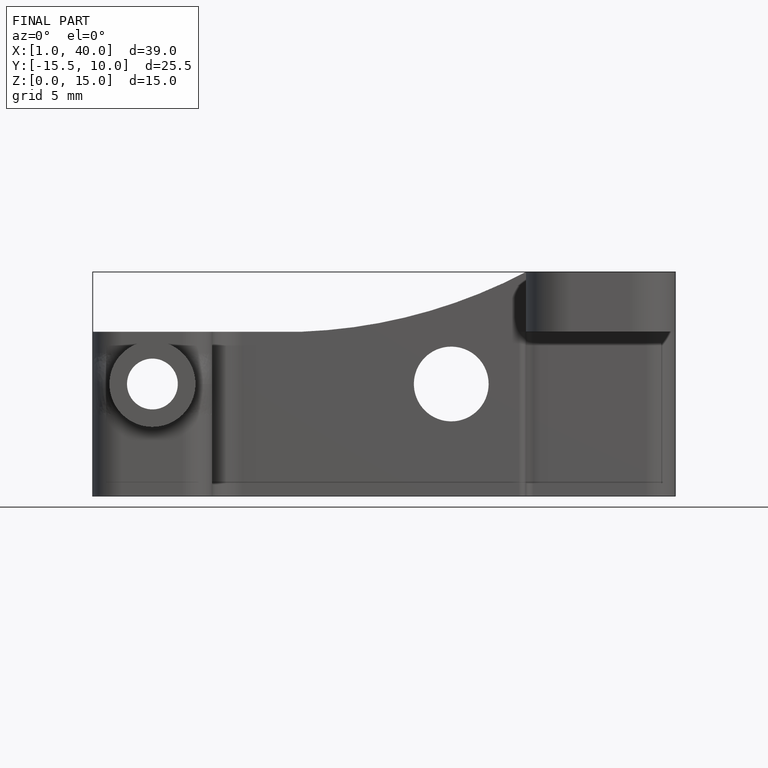
[diagram: finished part — front view with bounding-box wireframe]
